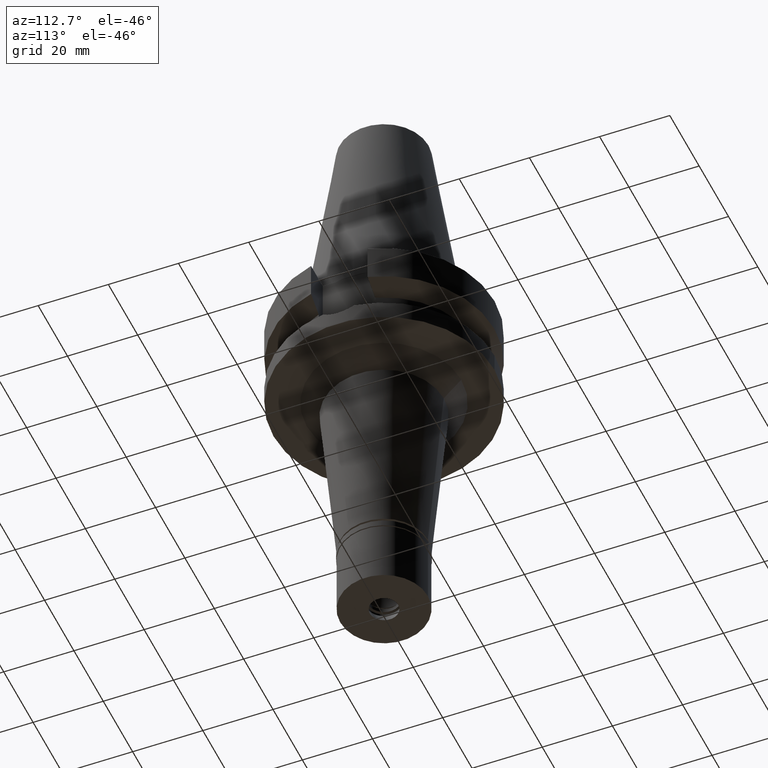
[diagram: clean part render]
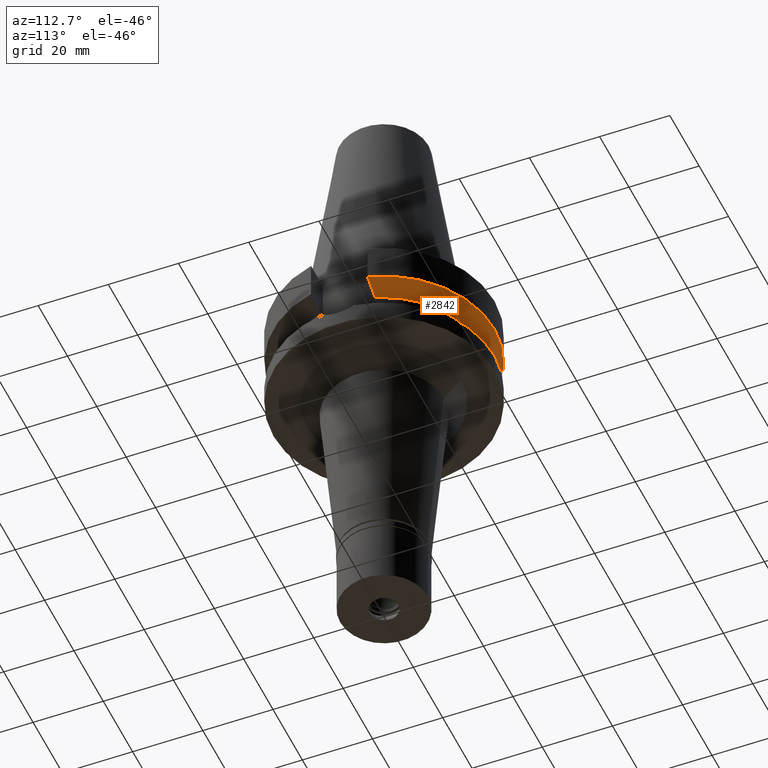
[diagram: same view with one face highlighted and labeled with its STEP entity id]
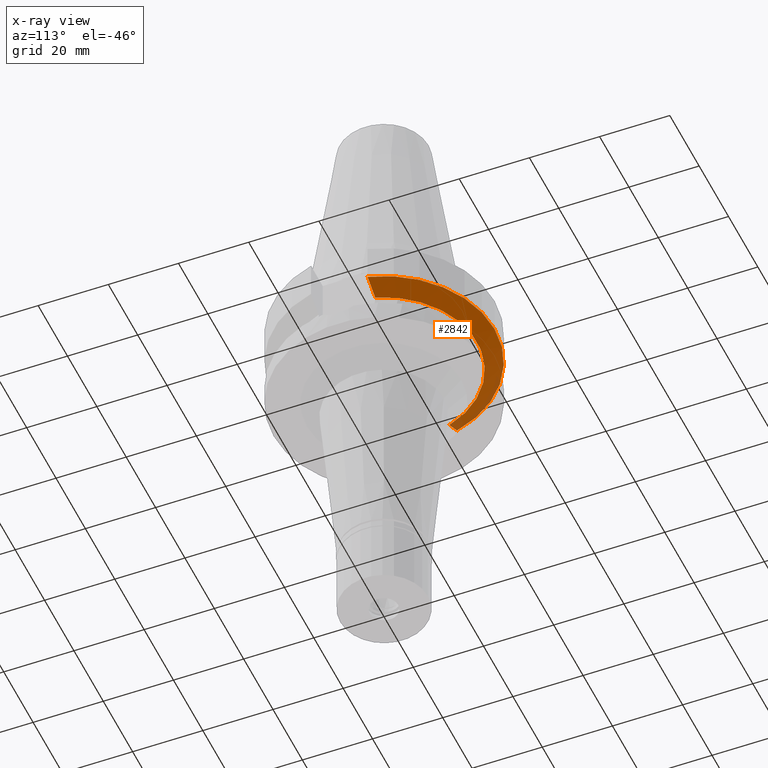
[diagram: x-ray of the same camera — body ghosted, the highlighted face saturated]
A machine part, auxiliary view. The second image highlights one B-rep face of the part: STEP entity #2842.
The next image is the same camera in x-ray: the body ghosted, the highlighted face saturated — about 8% of this face is hidden behind the body in this view.
In plain terms, the highlighted conical surface has half-angle 60 deg.
Its self-contained STEP definition (entity closure, byte-faithful):
#45 = CARTESIAN_POINT ( 'NONE',  ( 30.45402291379999937, 8.049999277388998564, -11.56551216107000002 ) ) ;
#92 = ORIENTED_EDGE ( 'NONE', *, *, #3116, .F. ) ;
#129 = B_SPLINE_CURVE_WITH_KNOTS ( 'NONE', 3,
 ( #45, #1728, #1049, #2001 ),
 .UNSPECIFIED., .F., .F.,
 ( 4, 4 ),
 ( 0.0000000000000000000, 1.000000000000000000 ),
 .UNSPECIFIED. ) ;
#481 = AXIS2_PLACEMENT_3D ( 'NONE', #2848, #2610, #2375 ) ;
#545 = ORIENTED_EDGE ( 'NONE', *, *, #917, .T. ) ;
#859 = VERTEX_POINT ( 'NONE', #1031 ) ;
#917 = EDGE_CURVE ( 'NONE', #859, #1943, #129, .T. ) ;
#986 = CARTESIAN_POINT ( 'NONE',  ( -25.24772216406000069, 8.050001585485000888, -14.45224488410999975 ) ) ;
#1031 = CARTESIAN_POINT ( 'NONE',  ( 30.45402291379999937, 8.049999277388998564, -11.56551216107000002 ) ) ;
#1049 = CARTESIAN_POINT ( 'NONE',  ( 26.83754615085404893, 8.049990819403165077, -13.57774888647318967 ) ) ;
#1062 = DIRECTION ( 'NONE',  ( 0.0000000000000000000, 1.000000000000000000, 0.0000000000000000000 ) ) ;
#1140 = DIRECTION ( 'NONE',  ( 0.0000000000000000000, 1.000000000000000000, 0.0000000000000000000 ) ) ;
#1141 = CARTESIAN_POINT ( 'NONE',  ( -28.57295869057979942, 8.050008283725389902, -12.61547481620068645 ) ) ;
#1205 = EDGE_LOOP ( 'NONE', ( #1266, #545, #92, #2382 ) ) ;
#1266 = ORIENTED_EDGE ( 'NONE', *, *, #1694, .F. ) ;
#1453 = CIRCLE ( 'NONE', #481, 26.50000000000000711 ) ;
#1490 = B_SPLINE_CURVE_WITH_KNOTS ( 'NONE', 3,
 ( #2553, #1577, #1141, #2337 ),
 .UNSPECIFIED., .F., .F.,
 ( 4, 4 ),
 ( 0.0000000000000000000, 1.000000000000000000 ),
 .UNSPECIFIED. ) ;
#1552 = AXIS2_PLACEMENT_3D ( 'NONE', #3064, #1840, #1140 ) ;
#1577 = CARTESIAN_POINT ( 'NONE',  ( -26.83758145844662479, 8.050003174394955607, -13.57772736621004661 ) ) ;
#1689 = CARTESIAN_POINT ( 'NONE',  ( -30.45402162729000040, 8.050004144381000870, -11.56546832184999829 ) ) ;
#1694 = EDGE_CURVE ( 'NONE', #859, #2056, #1910, .T. ) ;
#1701 = AXIS2_PLACEMENT_3D ( 'NONE', #2008, #2981, #1062 ) ;
#1728 = CARTESIAN_POINT ( 'NONE',  ( 28.57292328158431260, 8.049998555719435345, -12.61549606043312899 ) ) ;
#1840 = DIRECTION ( 'NONE',  ( 0.0000000000000000000, 0.0000000000000000000, 1.000000000000000000 ) ) ;
#1910 = CIRCLE ( 'NONE', #1552, 31.50000000000000000 ) ;
#1943 = VERTEX_POINT ( 'NONE', #2350 ) ;
#2001 = CARTESIAN_POINT ( 'NONE',  ( 25.24772413153000272, 8.049995414778999603, -14.45229203569000020 ) ) ;
#2008 = CARTESIAN_POINT ( 'NONE',  ( 0.0000000000000000000, 1.065333950388000029E-14, -13.00888132564000088 ) ) ;
#2056 = VERTEX_POINT ( 'NONE', #1689 ) ;
#2337 = CARTESIAN_POINT ( 'NONE',  ( -30.45402162729000040, 8.050004144381000870, -11.56546832184999829 ) ) ;
#2350 = CARTESIAN_POINT ( 'NONE',  ( 25.24772413153000272, 8.049995414778999603, -14.45229203569000020 ) ) ;
#2375 = DIRECTION ( 'NONE',  ( -0.9527442516822307583, 0.3037735849057093818, 0.0000000000000000000 ) ) ;
#2382 = ORIENTED_EDGE ( 'NONE', *, *, #2401, .T. ) ;
#2401 = EDGE_CURVE ( 'NONE', #2863, #2056, #1490, .T. ) ;
#2553 = CARTESIAN_POINT ( 'NONE',  ( -25.24772216406000069, 8.050001585485000888, -14.45224488410999975 ) ) ;
#2610 = DIRECTION ( 'NONE',  ( 0.0000000000000000000, 0.0000000000000000000, -1.000000000000000000 ) ) ;
#2712 = FACE_OUTER_BOUND ( 'NONE', #1205, .T. ) ;
#2842 = ADVANCED_FACE ( 'NONE', ( #2712 ), #3080, .T. ) ;
#2848 = CARTESIAN_POINT ( 'NONE',  ( 0.0000000000000000000, 1.065333950388000029E-14, -14.45225699861000024 ) ) ;
#2863 = VERTEX_POINT ( 'NONE', #986 ) ;
#2981 = DIRECTION ( 'NONE',  ( 0.0000000000000000000, 0.0000000000000000000, 1.000000000000000000 ) ) ;
#3064 = CARTESIAN_POINT ( 'NONE',  ( 0.0000000000000000000, 1.065333950388000029E-14, -11.56550565266999975 ) ) ;
#3080 = CONICAL_SURFACE ( 'NONE', #1701, 29.00000000000000000, 1.047197551196400456 ) ;
#3116 = EDGE_CURVE ( 'NONE', #2863, #1943, #1453, .T. ) ;